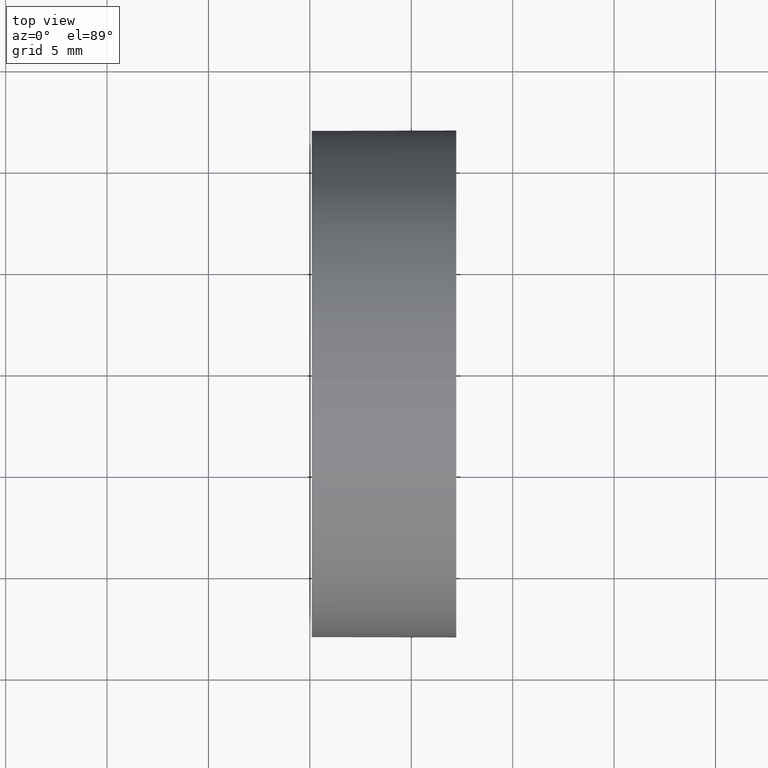
[diagram: clean part render]
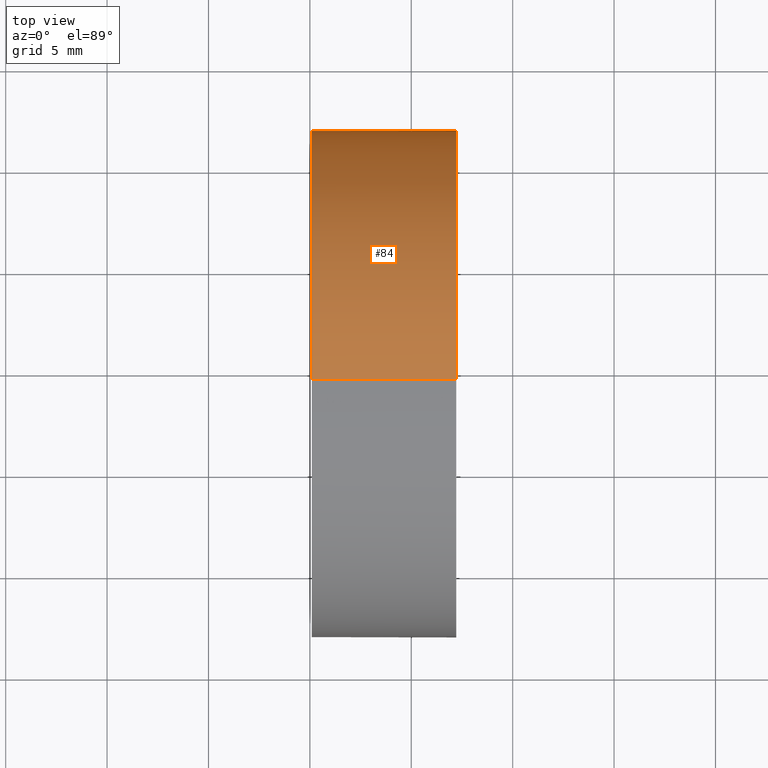
[diagram: same view with one face highlighted and labeled with its STEP entity id]
A machine part, top view. The second image highlights one B-rep face of the part: STEP entity #84.
In plain terms, the highlighted cylindrical surface (partial cylindrical patch) has radius 12.5 mm, axis along (-1, -0, -0).
Its self-contained STEP definition (entity closure, byte-faithful):
#2 = EDGE_CURVE ( 'NONE', #163, #71, #20, .T. ) ;
#8 = CARTESIAN_POINT ( 'NONE',  ( 115.0926555349195200, 69.37802112337243400, -12.49999999999999600 ) ) ;
#11 = CARTESIAN_POINT ( 'NONE',  ( 115.0926555349195200, 69.37802112337243400, 12.49999999999999600 ) ) ;
#14 = FACE_OUTER_BOUND ( 'NONE', #102, .T. ) ;
#15 = ORIENTED_EDGE ( 'NONE', *, *, #64, .T. ) ;
#19 = CARTESIAN_POINT ( 'NONE',  ( 108.9851430021651000, 69.37802112337243400, 12.50000000000001100 ) ) ;
#20 = CIRCLE ( 'NONE', #157, 12.50000000000002500 ) ;
#21 = DIRECTION ( 'NONE',  ( 0.0000000000000000000, 0.0000000000000000000, 1.000000000000000000 ) ) ;
#23 = VERTEX_POINT ( 'NONE', #8 ) ;
#25 = DIRECTION ( 'NONE',  ( -1.000000000000000000, -0.0000000000000000000, -0.0000000000000000000 ) ) ;
#28 = AXIS2_PLACEMENT_3D ( 'NONE', #77, #121, #46 ) ;
#32 = DIRECTION ( 'NONE',  ( 0.0000000000000000000, 0.0000000000000000000, 1.000000000000000000 ) ) ;
#33 = ORIENTED_EDGE ( 'NONE', *, *, #89, .F. ) ;
#36 = ORIENTED_EDGE ( 'NONE', *, *, #2, .T. ) ;
#45 = CIRCLE ( 'NONE', #75, 12.49999999999999600 ) ;
#46 = DIRECTION ( 'NONE',  ( 0.0000000000000000000, 0.0000000000000000000, 1.000000000000000000 ) ) ;
#47 = VECTOR ( 'NONE', #25, 1000.000000000000000 ) ;
#53 = EDGE_CURVE ( 'NONE', #87, #173, #70, .T. ) ;
#64 = EDGE_CURVE ( 'NONE', #87, #163, #127, .T. ) ;
#70 = LINE ( 'NONE', #19, #176 ) ;
#71 = VERTEX_POINT ( 'NONE', #104 ) ;
#75 = AXIS2_PLACEMENT_3D ( 'NONE', #109, #168, #179 ) ;
#76 = CARTESIAN_POINT ( 'NONE',  ( 122.2177689612784500, 69.37802112337243400, 0.0000000000000000000 ) ) ;
#77 = CARTESIAN_POINT ( 'NONE',  ( 108.9851430021651000, 69.37802112337243400, 0.0000000000000000000 ) ) ;
#79 = CARTESIAN_POINT ( 'NONE',  ( 122.2177689612784500, 69.37802112337243400, 12.50000000000002500 ) ) ;
#83 = ORIENTED_EDGE ( 'NONE', *, *, #147, .T. ) ;
#84 = ADVANCED_FACE ( 'NONE', ( #14 ), #172, .T. ) ;
#87 = VERTEX_POINT ( 'NONE', #79 ) ;
#89 = EDGE_CURVE ( 'NONE', #173, #23, #45, .T. ) ;
#92 = ORIENTED_EDGE ( 'NONE', *, *, #53, .F. ) ;
#94 = CARTESIAN_POINT ( 'NONE',  ( 122.2177689612784500, 81.87802112337244900, 1.530808498934190300E-015 ) ) ;
#102 = EDGE_LOOP ( 'NONE', ( #36, #83, #33, #92, #15 ) ) ;
#104 = CARTESIAN_POINT ( 'NONE',  ( 122.2177689612784500, 69.37802112337243400, -12.50000000000002500 ) ) ;
#106 = DIRECTION ( 'NONE',  ( -1.000000000000000000, -0.0000000000000000000, -0.0000000000000000000 ) ) ;
#108 = CARTESIAN_POINT ( 'NONE',  ( 122.2177689612784500, 69.37802112337243400, 0.0000000000000000000 ) ) ;
#109 = CARTESIAN_POINT ( 'NONE',  ( 115.0926555349195200, 69.37802112337243400, 0.0000000000000000000 ) ) ;
#118 = LINE ( 'NONE', #140, #47 ) ;
#121 = DIRECTION ( 'NONE',  ( -1.000000000000000000, -0.0000000000000000000, -0.0000000000000000000 ) ) ;
#127 = CIRCLE ( 'NONE', #170, 12.50000000000002500 ) ;
#140 = CARTESIAN_POINT ( 'NONE',  ( 108.9851430021651000, 69.37802112337243400, -12.50000000000001100 ) ) ;
#147 = EDGE_CURVE ( 'NONE', #71, #23, #118, .T. ) ;
#157 = AXIS2_PLACEMENT_3D ( 'NONE', #108, #166, #21 ) ;
#163 = VERTEX_POINT ( 'NONE', #94 ) ;
#164 = DIRECTION ( 'NONE',  ( -1.000000000000000000, -0.0000000000000000000, -0.0000000000000000000 ) ) ;
#166 = DIRECTION ( 'NONE',  ( -1.000000000000000000, -0.0000000000000000000, -0.0000000000000000000 ) ) ;
#168 = DIRECTION ( 'NONE',  ( -1.000000000000000000, -0.0000000000000000000, -0.0000000000000000000 ) ) ;
#170 = AXIS2_PLACEMENT_3D ( 'NONE', #76, #164, #32 ) ;
#172 = CYLINDRICAL_SURFACE ( 'NONE', #28, 12.50000000000001100 ) ;
#173 = VERTEX_POINT ( 'NONE', #11 ) ;
#176 = VECTOR ( 'NONE', #106, 1000.000000000000000 ) ;
#179 = DIRECTION ( 'NONE',  ( 0.0000000000000000000, 0.0000000000000000000, 1.000000000000000000 ) ) ;